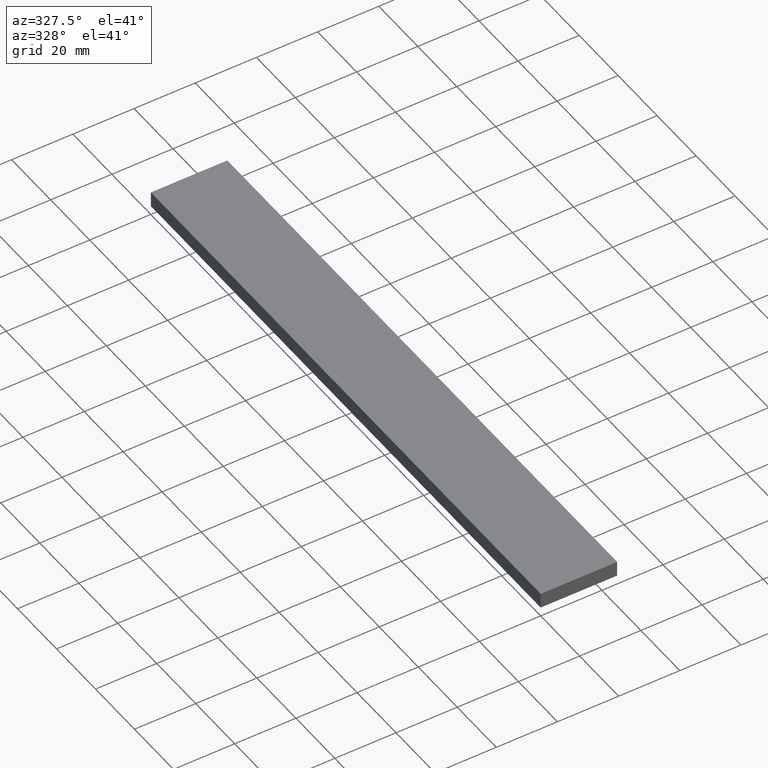
[diagram: clean part render]
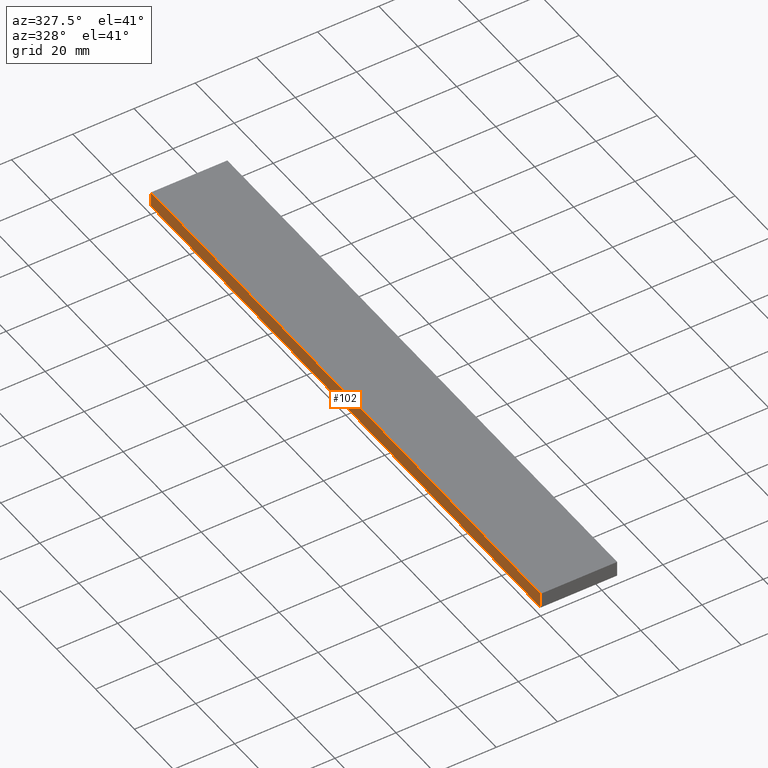
[diagram: same view with one face highlighted and labeled with its STEP entity id]
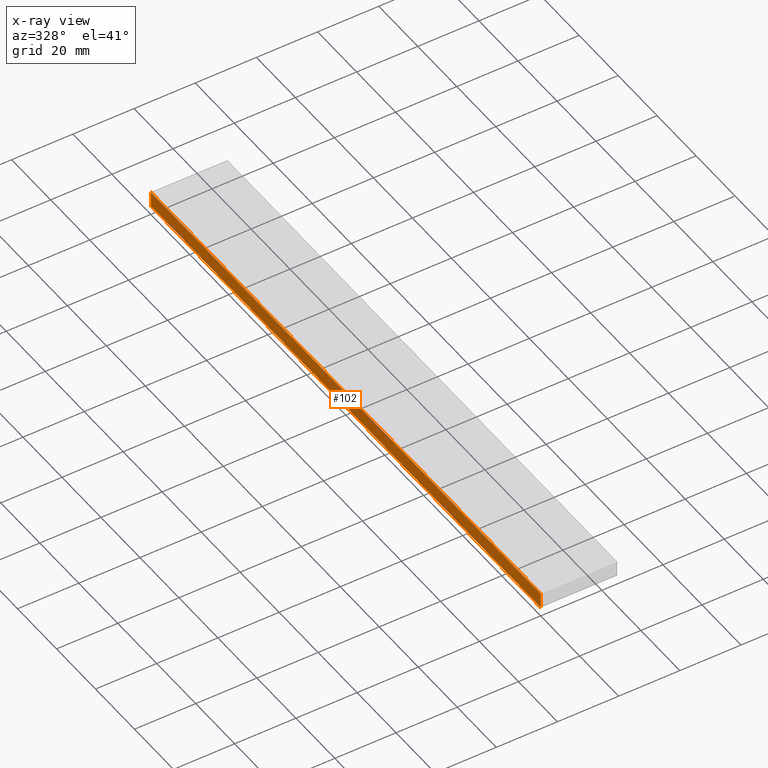
[diagram: x-ray of the same camera — body ghosted, the highlighted face saturated]
A machine part, auxiliary view. The second image highlights one B-rep face of the part: STEP entity #102.
The next image is the same camera in x-ray: the body ghosted, the highlighted face saturated — about 0% of this face is hidden behind the body in this view.
In plain terms, the highlighted planar face has unit normal (1, 0, 0).
Its self-contained STEP definition (entity closure, byte-faithful):
#14 = CARTESIAN_POINT ( 'NONE',  ( 0.0000000000000000000, 0.0000000000000000000, 5.000000000000000000 ) ) ;
#29 = VECTOR ( 'NONE', #140, 1000.000000000000000 ) ;
#39 = VECTOR ( 'NONE', #47, 1000.000000000000000 ) ;
#41 = EDGE_CURVE ( 'NONE', #143, #213, #54, .T. ) ;
#43 = CARTESIAN_POINT ( 'NONE',  ( 0.0000000000000000000, 0.0000000000000000000, 0.0000000000000000000 ) ) ;
#47 = DIRECTION ( 'NONE',  ( 0.0000000000000000000, 0.0000000000000000000, 1.000000000000000000 ) ) ;
#50 = DIRECTION ( 'NONE',  ( 1.000000000000000000, 0.0000000000000000000, 0.0000000000000000000 ) ) ;
#54 = LINE ( 'NONE', #75, #218 ) ;
#58 = VERTEX_POINT ( 'NONE', #14 ) ;
#71 = EDGE_CURVE ( 'NONE', #213, #58, #148, .T. ) ;
#75 = CARTESIAN_POINT ( 'NONE',  ( 0.0000000000000000000, 200.0000000000000000, 0.0000000000000000000 ) ) ;
#80 = ORIENTED_EDGE ( 'NONE', *, *, #41, .F. ) ;
#83 = EDGE_CURVE ( 'NONE', #143, #202, #145, .T. ) ;
#88 = EDGE_CURVE ( 'NONE', #202, #58, #189, .T. ) ;
#94 = CARTESIAN_POINT ( 'NONE',  ( 0.0000000000000000000, 0.0000000000000000000, 0.0000000000000000000 ) ) ;
#102 = ADVANCED_FACE ( 'NONE', ( #232 ), #186, .F. ) ;
#119 = CARTESIAN_POINT ( 'NONE',  ( 0.0000000000000000000, 1000.000000000000000, 5.000000000000000000 ) ) ;
#123 = ORIENTED_EDGE ( 'NONE', *, *, #88, .T. ) ;
#140 = DIRECTION ( 'NONE',  ( 0.0000000000000000000, -1.000000000000000000, 0.0000000000000000000 ) ) ;
#143 = VERTEX_POINT ( 'NONE', #180 ) ;
#145 = LINE ( 'NONE', #235, #29 ) ;
#148 = LINE ( 'NONE', #119, #223 ) ;
#158 = CARTESIAN_POINT ( 'NONE',  ( 0.0000000000000000000, 1000.000000000000000, 0.0000000000000000000 ) ) ;
#161 = EDGE_LOOP ( 'NONE', ( #123, #229, #80, #222 ) ) ;
#165 = AXIS2_PLACEMENT_3D ( 'NONE', #158, #50, #170 ) ;
#170 = DIRECTION ( 'NONE',  ( 0.0000000000000000000, 0.0000000000000000000, -1.000000000000000000 ) ) ;
#180 = CARTESIAN_POINT ( 'NONE',  ( 0.0000000000000000000, 200.0000000000000000, 0.0000000000000000000 ) ) ;
#186 = PLANE ( 'NONE',  #165 ) ;
#189 = LINE ( 'NONE', #94, #39 ) ;
#202 = VERTEX_POINT ( 'NONE', #43 ) ;
#213 = VERTEX_POINT ( 'NONE', #230 ) ;
#216 = DIRECTION ( 'NONE',  ( 0.0000000000000000000, -1.000000000000000000, 0.0000000000000000000 ) ) ;
#218 = VECTOR ( 'NONE', #236, 1000.000000000000000 ) ;
#222 = ORIENTED_EDGE ( 'NONE', *, *, #83, .T. ) ;
#223 = VECTOR ( 'NONE', #216, 1000.000000000000000 ) ;
#229 = ORIENTED_EDGE ( 'NONE', *, *, #71, .F. ) ;
#230 = CARTESIAN_POINT ( 'NONE',  ( 0.0000000000000000000, 200.0000000000000000, 5.000000000000000000 ) ) ;
#232 = FACE_OUTER_BOUND ( 'NONE', #161, .T. ) ;
#235 = CARTESIAN_POINT ( 'NONE',  ( 0.0000000000000000000, 1000.000000000000000, 0.0000000000000000000 ) ) ;
#236 = DIRECTION ( 'NONE',  ( 0.0000000000000000000, 0.0000000000000000000, 1.000000000000000000 ) ) ;